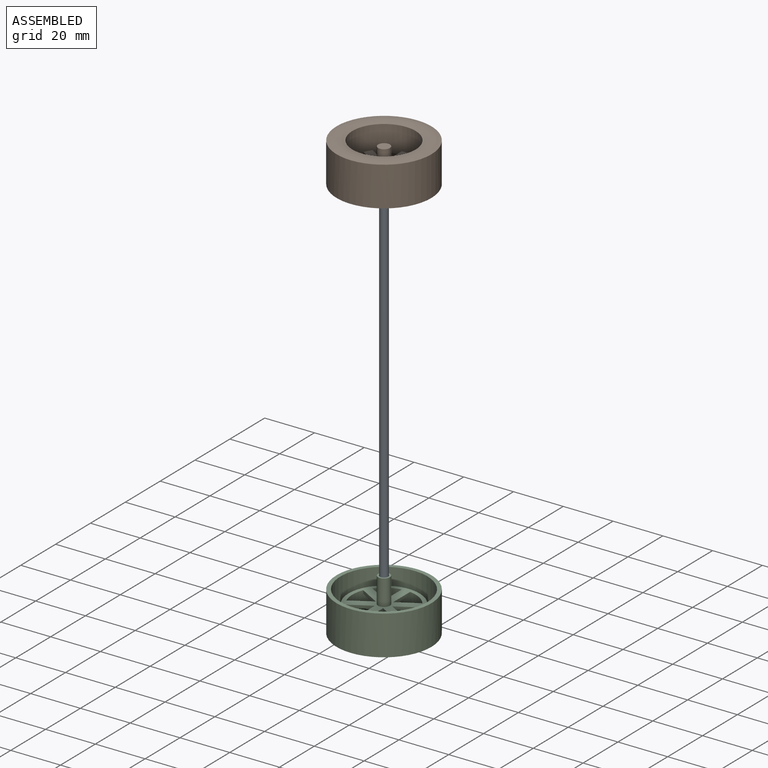
[diagram: assembled view]
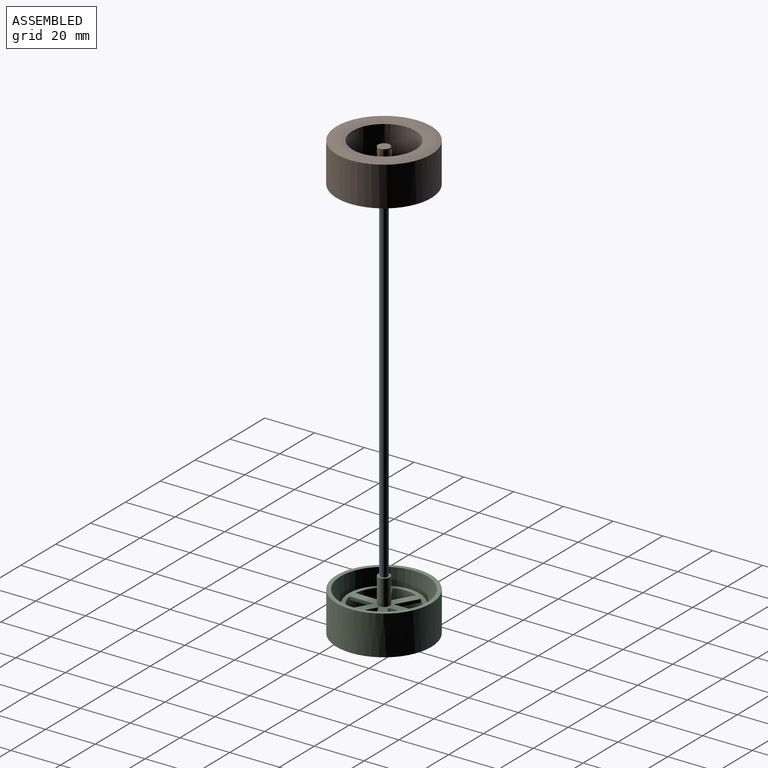
[diagram: assembled view, second angle]
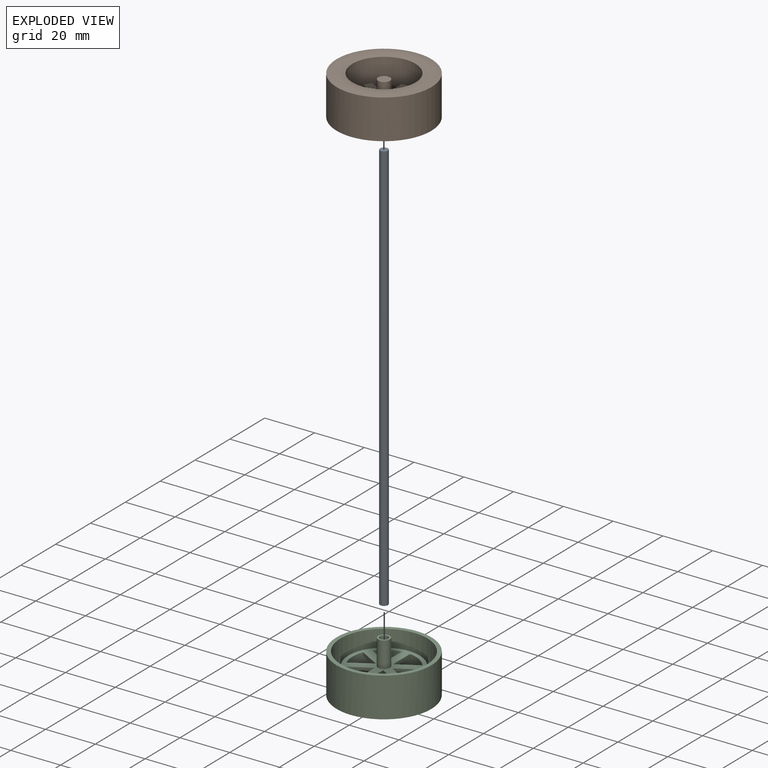
[diagram: exploded view]
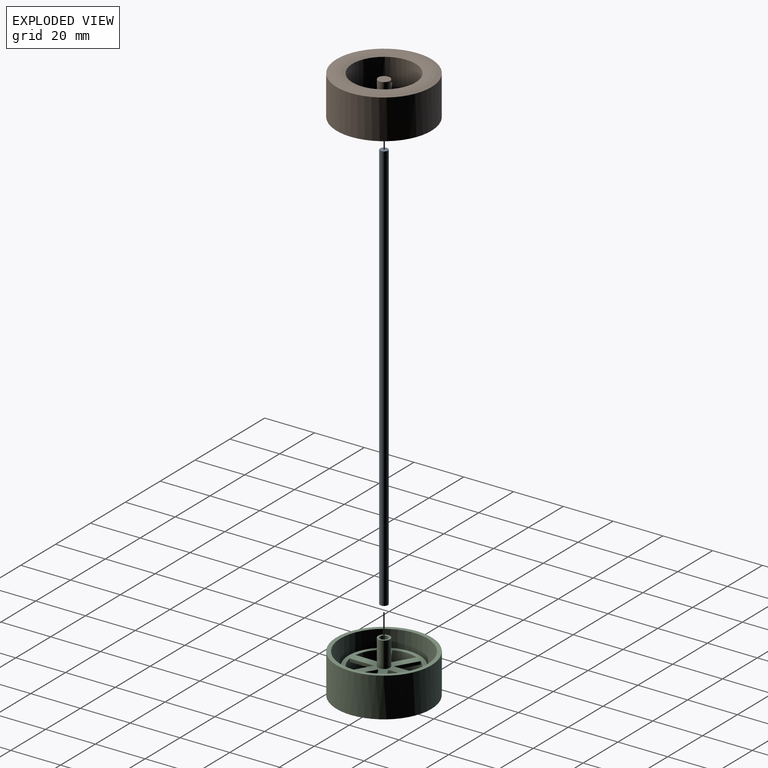
[diagram: exploded view, second angle]
ASSEMBLY  parts=3 mates=2
PART A: 3 faces, bbox 165.1x3.2x3.2 mm
  f0: cylinder r=1.59mm len=165.1mm, axis (-1,0,0), area 1646.8mm2, adj f1,f2
  f1: plane 3.18x3.18mm, normal (1,0,0), area 7.9mm2, adj f0
  f2: plane 3.18x3.18mm, normal (-1,0,0), area 7.9mm2, adj f0
PART B: 27 faces, bbox 50.2x50.2x21.4 mm
  f0: plane 28.58x28.58mm, normal (0,0,-1), area 339.4mm2, adj f1,f2,f3,f4,f5,f6,f7,f8
  f1: cylinder r=12.7mm len=25.4mm, axis (0,0,1), area 813.6mm2, adj f0,f2,f3,f4,f5,f6,f7,f8
  f2: plane 8.43x4.87mm, normal (-0.5,0.87,0), area 12.5mm2, adj f0,f1,f3,f14
  f3: plane 8.43x4.87mm, normal (-0.5,-0.87,0), area 12.5mm2, adj f0,f1,f2,f14
  f4: plane 8.43x4.87mm, normal (0.5,0.87,0), area 12.5mm2, adj f0,f1,f5,f14
  f5: plane 9.73x1.28mm, normal (-1,0,0), area 12.5mm2, adj f0,f1,f4,f14
  f6: plane 8.43x4.87mm, normal (0.5,-0.87,0), area 12.5mm2, adj f0,f1,f7,f14
  f7: plane 8.43x4.87mm, normal (0.5,0.87,0), area 12.5mm2, adj f0,f1,f6,f14
  f8: plane 9.73x1.28mm, normal (1,0,0), area 12.5mm2, adj f0,f1,f9,f14
  f9: plane 8.43x4.87mm, normal (-0.5,0.87,0), area 12.5mm2, adj f0,f1,f8,f14
  f10: plane 8.43x4.87mm, normal (-0.5,-0.87,0), area 12.5mm2, adj f0,f1,f11,f14
  f11: plane 9.73x1.28mm, normal (1,0,0), area 12.5mm2, adj f0,f1,f10,f14
  f12: plane 9.73x1.28mm, normal (-1,0,0), area 12.5mm2, adj f0,f1,f13,f14
  f13: plane 8.43x4.87mm, normal (0.5,-0.87,0), area 12.5mm2, adj f0,f1,f12,f14
  f14: plane 25.4x23.46mm, normal (0,0,1), area 204.8mm2, adj f1,f2,f3,f4,f5,f6,f7,f8
  f15: plane 38.1x38.1mm, normal (0,0,-1), area 182.1mm2, adj f16,f19
  f16: cylinder r=19.05mm len=38.1mm, axis (0,0,-1), area 1900.2mm2, adj f15,f26
  f17: cylinder r=2.38mm len=7.06mm, axis (0,0,-1), area 105.6mm2, adj f14,f18
  f18: plane 4.76x4.76mm, normal (0,0,1), area 17.8mm2, adj f17
  f19: cylinder r=17.46mm len=34.93mm, axis (0,0,-1), area 1647.1mm2, adj f15,f21
  f20: cylinder r=14.29mm len=28.58mm, axis (0,0,-1), area 866.5mm2, adj f0,f21
  f21: plane 34.93x34.93mm, normal (0,0,-1), area 316.7mm2, adj f19,f20
  f22: cylinder r=2.38mm len=10.34mm, axis (0,0,1), area 154.7mm2, adj f0,f23
  f23: plane 4.76x4.76mm, normal (0,0,-1), area 9.3mm2, adj f22,f24
  f24: cylinder r=1.65mm len=17.53mm, axis (0,0,-1), area 181.8mm2, adj f23,f25
  f25: plane 3.3x3.3mm, normal (0,0,-1), area 8.6mm2, adj f24
  f26: torus R=15.88mm, axis (0,0,-1), area 643.8mm2, adj f1,f16
PART C: same geometry as B
PLACE A rot(axis=(0,-1,0),90deg) t=(0,0,93.07)mm
PLACE B t=(0,0,171.01)mm
PLACE C rot(axis=(0,1,0),180deg) t=(0,0,7.94)mm
MATE fastened A.f0 <-> C.f20  axis (0,0,-1) through (0,0,10.52)mm
MATE fastened A.f0 <-> B.f24  axis (0,0,1) through (0,0,175.62)mm
